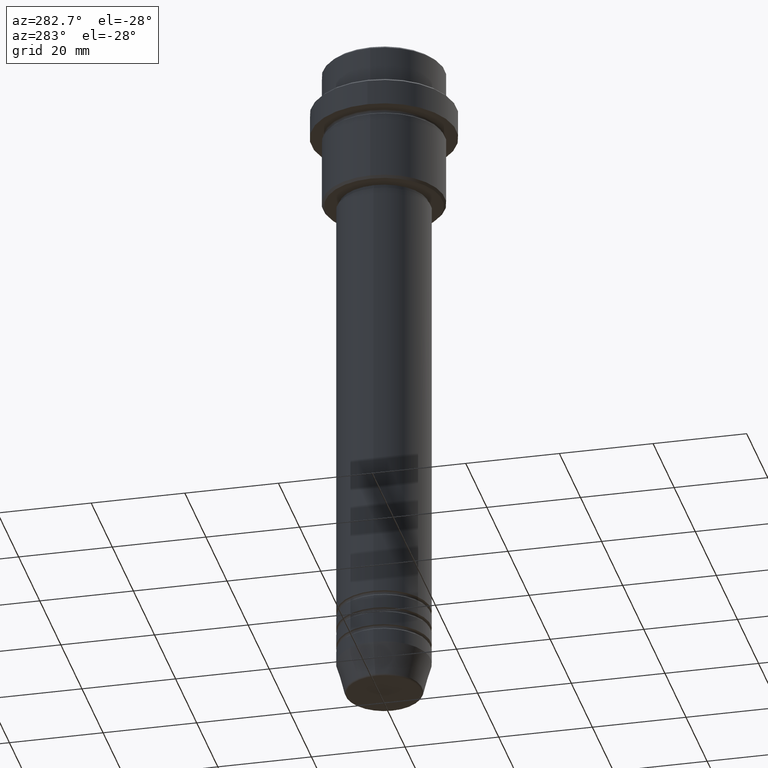
[diagram: clean part render]
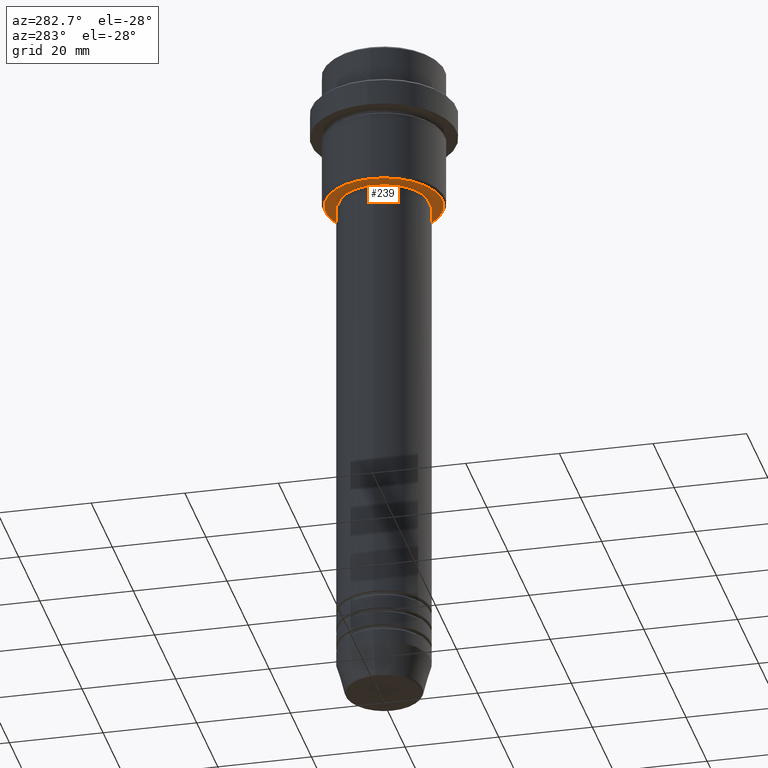
[diagram: same view with one face highlighted and labeled with its STEP entity id]
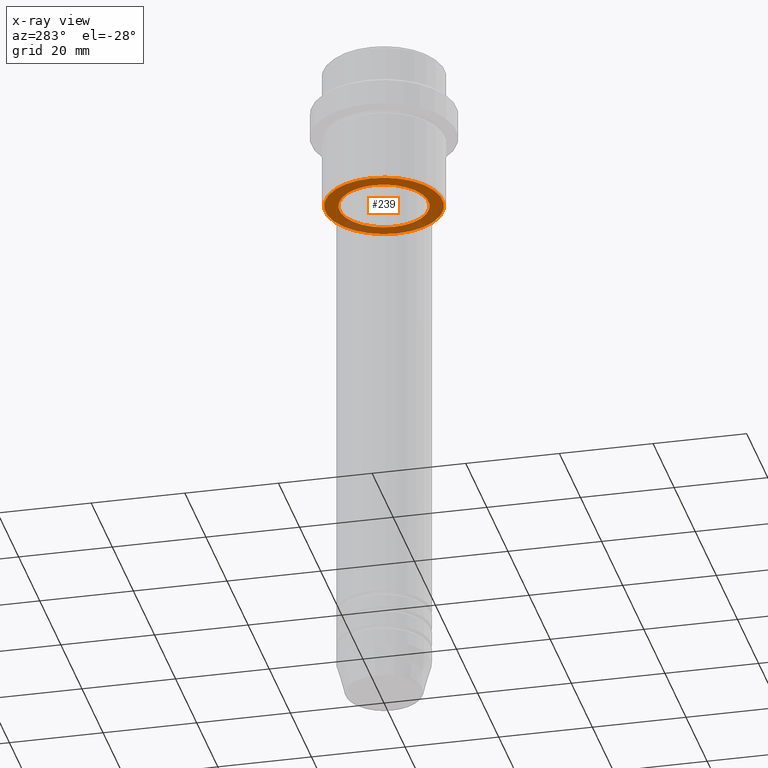
[diagram: x-ray of the same camera — body ghosted, the highlighted face saturated]
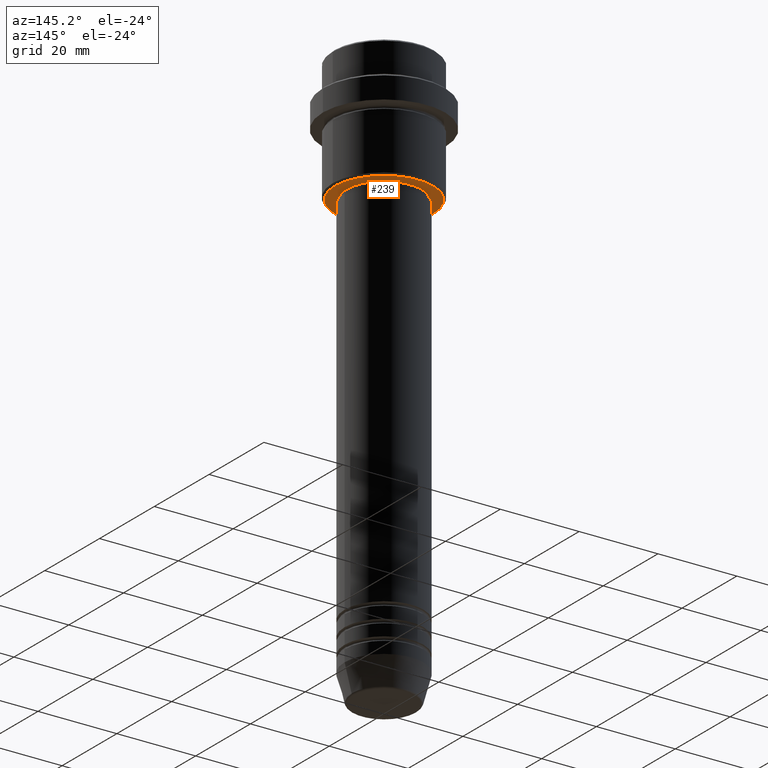
[diagram: same view with one face highlighted and labeled with its STEP entity id]
A machine part, auxiliary view. The second image highlights one B-rep face of the part: STEP entity #239.
The next image is the same camera in x-ray: the body ghosted, the highlighted face saturated — about 26% of this face is hidden behind the body in this view.
A second angle (auxiliary view) of the same face is appended — the face is thin or edge-on in the first view.
In plain terms, the highlighted planar face has unit normal (0, 0, -1).
Its self-contained STEP definition (entity closure, byte-faithful):
#35 = AXIS2_PLACEMENT_3D ( 'NONE', #742, #384, #1040 ) ;
#50 = CARTESIAN_POINT ( 'NONE',  ( 0.000000000000000000, 0.000000000000000000, -31.00000000000000000 ) ) ;
#51 = CARTESIAN_POINT ( 'NONE',  ( 0.000000000000000000, 0.000000000000000000, -31.00000000000000000 ) ) ;
#61 = CARTESIAN_POINT ( 'NONE',  ( 0.000000000000000000, 0.000000000000000000, -31.00000000000000000 ) ) ;
#74 = AXIS2_PLACEMENT_3D ( 'NONE', #61, #495, #710 ) ;
#99 = AXIS2_PLACEMENT_3D ( 'NONE', #51, #800, #574 ) ;
#103 = DIRECTION ( 'NONE',  ( 0.000000000000000000, 0.000000000000000000, -1.000000000000000000 ) ) ;
#111 = EDGE_CURVE ( 'NONE', #1303, #306, #635, .T. ) ;
#119 = CARTESIAN_POINT ( 'NONE',  ( -9.499999999999996447, 1.163414459189985091E-15, -31.00000000000000000 ) ) ;
#221 = EDGE_CURVE ( 'NONE', #683, #257, #869, .T. ) ;
#239 = ADVANCED_FACE ( 'NONE', ( #1145, #646 ), #1414, .T. ) ;
#257 = VERTEX_POINT ( 'NONE', #556 ) ;
#261 = EDGE_LOOP ( 'NONE', ( #428, #677 ) ) ;
#306 = VERTEX_POINT ( 'NONE', #119 ) ;
#384 = DIRECTION ( 'NONE',  ( -0.000000000000000000, -0.000000000000000000, 1.000000000000000000 ) ) ;
#417 = CIRCLE ( 'NONE', #99, 12.49999999999996980 ) ;
#428 = ORIENTED_EDGE ( 'NONE', *, *, #111, .T. ) ;
#456 = DIRECTION ( 'NONE',  ( -0.000000000000000000, -0.000000000000000000, 1.000000000000000000 ) ) ;
#495 = DIRECTION ( 'NONE',  ( 0.000000000000000000, 0.000000000000000000, -1.000000000000000000 ) ) ;
#521 = EDGE_LOOP ( 'NONE', ( #611, #691 ) ) ;
#556 = CARTESIAN_POINT ( 'NONE',  ( -12.49999999999996980, 1.561424668912873336E-15, -31.00000000000000000 ) ) ;
#574 = DIRECTION ( 'NONE',  ( -1.000000000000000000, 0.000000000000000000, 0.000000000000000000 ) ) ;
#611 = ORIENTED_EDGE ( 'NONE', *, *, #221, .T. ) ;
#635 = CIRCLE ( 'NONE', #35, 9.499999999999996447 ) ;
#646 = FACE_BOUND ( 'NONE', #261, .T. ) ;
#677 = ORIENTED_EDGE ( 'NONE', *, *, #1283, .T. ) ;
#683 = VERTEX_POINT ( 'NONE', #1376 ) ;
#691 = ORIENTED_EDGE ( 'NONE', *, *, #863, .T. ) ;
#710 = DIRECTION ( 'NONE',  ( -1.000000000000000000, 0.000000000000000000, 0.000000000000000000 ) ) ;
#742 = CARTESIAN_POINT ( 'NONE',  ( 0.000000000000000000, 0.000000000000000000, -31.00000000000000000 ) ) ;
#800 = DIRECTION ( 'NONE',  ( 0.000000000000000000, 0.000000000000000000, -1.000000000000000000 ) ) ;
#863 = EDGE_CURVE ( 'NONE', #257, #683, #417, .T. ) ;
#869 = CIRCLE ( 'NONE', #74, 12.49999999999996980 ) ;
#889 = CARTESIAN_POINT ( 'NONE',  ( 9.499999999999996447, 0.000000000000000000, -31.00000000000000000 ) ) ;
#943 = CIRCLE ( 'NONE', #1385, 9.499999999999996447 ) ;
#1012 = DIRECTION ( 'NONE',  ( 1.000000000000000000, 0.000000000000000000, 0.000000000000000000 ) ) ;
#1040 = DIRECTION ( 'NONE',  ( 1.000000000000000000, 0.000000000000000000, 0.000000000000000000 ) ) ;
#1087 = DIRECTION ( 'NONE',  ( -1.000000000000000000, 0.000000000000000000, -0.000000000000000000 ) ) ;
#1123 = AXIS2_PLACEMENT_3D ( 'NONE', #1301, #103, #1087 ) ;
#1145 = FACE_OUTER_BOUND ( 'NONE', #521, .T. ) ;
#1283 = EDGE_CURVE ( 'NONE', #306, #1303, #943, .T. ) ;
#1301 = CARTESIAN_POINT ( 'NONE',  ( 0.000000000000000000, 13.00000000000000000, -31.00000000000000000 ) ) ;
#1303 = VERTEX_POINT ( 'NONE', #889 ) ;
#1376 = CARTESIAN_POINT ( 'NONE',  ( 12.49999999999996980, 0.000000000000000000, -31.00000000000000000 ) ) ;
#1385 = AXIS2_PLACEMENT_3D ( 'NONE', #50, #456, #1012 ) ;
#1414 = PLANE ( 'NONE',  #1123 ) ;